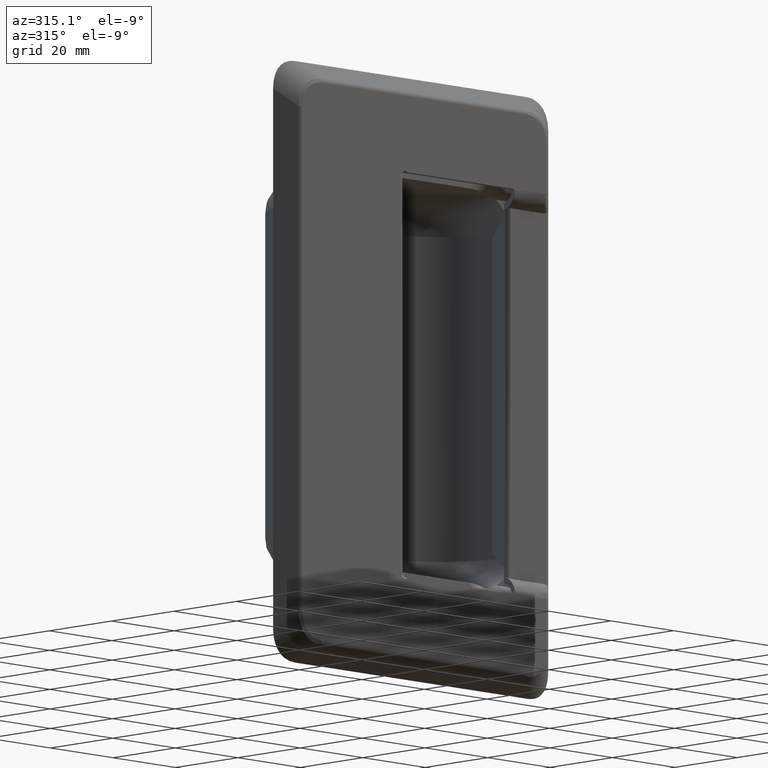
[diagram: clean part render]
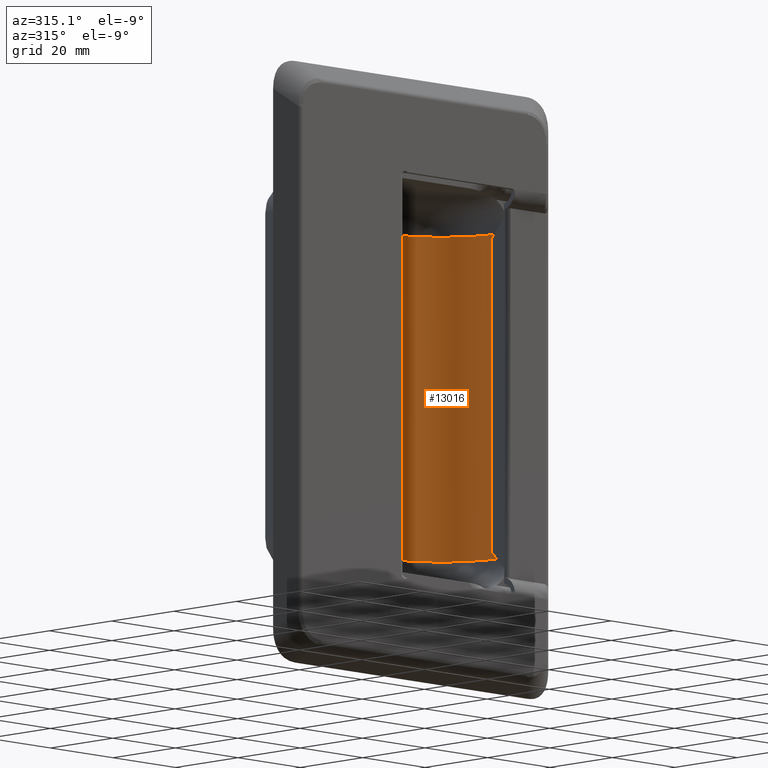
[diagram: same view with one face highlighted and labeled with its STEP entity id]
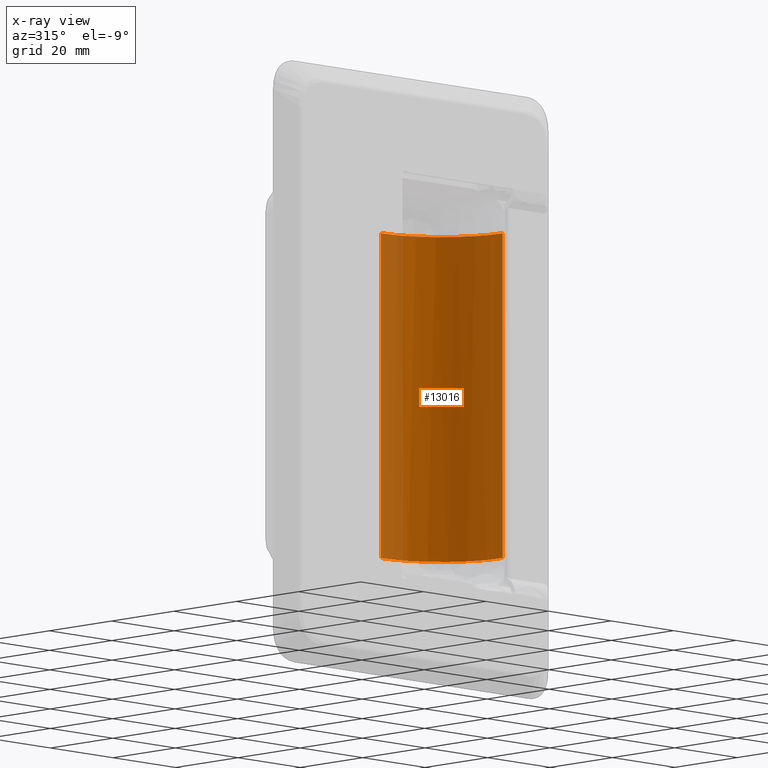
[diagram: x-ray of the same camera — body ghosted, the highlighted face saturated]
A machine part, auxiliary view. The second image highlights one B-rep face of the part: STEP entity #13016.
The next image is the same camera in x-ray: the body ghosted, the highlighted face saturated — about 18% of this face is hidden behind the body in this view.
In plain terms, the highlighted face is a freeform B-spline surface patch.
Its self-contained STEP definition (entity closure, byte-faithful):
#12444=CARTESIAN_POINT('',(30.999999999512951,6.000000000162540,37.249999999966853));
#12445=VERTEX_POINT('',#12444);
#12493=CARTESIAN_POINT('',(11.499999999512960,25.500000000162501,37.249999999956891));
#12494=VERTEX_POINT('',#12493);
#12511=CARTESIAN_POINT('',(11.499999999512960,25.500000000162501,37.249999999956891));
#12512=CARTESIAN_POINT('',(13.215051111177200,25.500532260888910,37.249999999956863));
#12513=CARTESIAN_POINT('',(15.886937039796640,25.145123610949089,37.249999999957232));
#12514=CARTESIAN_POINT('',(19.245414878732671,23.966419696263230,37.249999999957488));
#12515=CARTESIAN_POINT('',(21.587298253000469,22.751375639999690,37.249999999958654));
#12516=CARTESIAN_POINT('',(23.555900358392091,21.382881773687441,37.249999999958511));
#12517=CARTESIAN_POINT('',(25.560853274295429,19.610141710692272,37.249999999960806));
#12518=CARTESIAN_POINT('',(27.216748572274309,17.654376201048152,37.249999999960593));
#12519=CARTESIAN_POINT('',(28.726375527720808,15.254048126577500,37.249999999962093));
#12520=CARTESIAN_POINT('',(29.866744121700059,12.784558390685129,37.249999999963457));
#12521=CARTESIAN_POINT('',(30.772046110546249,9.589440714130939,37.249999999965027));
#12522=CARTESIAN_POINT('',(31.000175508711230,7.276277328261594,37.249999999966157));
#12523=CARTESIAN_POINT('',(30.999999999512951,6.000000000162540,37.249999999966853));
#12524=B_SPLINE_CURVE_WITH_KNOTS('',3,(#12511,#12512,#12513,#12514,#12515,#12516,#12517,#12518,#12519,#12520,#12521,#12522,#12523),.UNSPECIFIED.,.F.,.U.,(4,1,1,1,1,1,1,1,1,1,4),(0.000000094483095,5.144966899626336,8.016596680881811,10.648928653391950,13.041967736172010,15.195695518127931,18.665479991663940,20.699551429892370,23.690841439743888,26.801785137441200,30.630576422912519),.UNSPECIFIED.);
#12525=EDGE_CURVE('',#12494,#12445,#12524,.T.);
#12812=CARTESIAN_POINT('',(11.499999999513200,25.500000000162551,-37.250000000208800));
#12813=VERTEX_POINT('',#12812);
#12907=CARTESIAN_POINT('',(30.999999999513200,6.000000000162540,-37.250000000191648));
#12908=VERTEX_POINT('',#12907);
#12925=CARTESIAN_POINT('',(30.999999999513200,6.000000000162540,-37.250000000191648));
#12926=CARTESIAN_POINT('',(31.000061019447930,7.036969885404043,-37.250000000191633));
#12927=CARTESIAN_POINT('',(30.827842336896001,9.190672010200057,-37.250000000191861));
#12928=CARTESIAN_POINT('',(30.088635912227929,12.141835860209939,-37.250000000192472));
#12929=CARTESIAN_POINT('',(28.970844358318459,14.794099823280440,-37.250000000193488));
#12930=CARTESIAN_POINT('',(27.486054880313620,17.306279979185899,-37.250000000194767));
#12931=CARTESIAN_POINT('',(25.548314747292359,19.652754759047159,-37.250000000196508));
#12932=CARTESIAN_POINT('',(23.282588880261329,21.619183451245160,-37.250000000198440));
#12933=CARTESIAN_POINT('',(20.765077617090238,23.246140343535380,-37.250000000200707));
#12934=CARTESIAN_POINT('',(18.133004793933310,24.422511376908162,-37.250000000203009));
#12935=CARTESIAN_POINT('',(14.929910525863360,25.287765758187799,-37.250000000205723));
#12936=CARTESIAN_POINT('',(12.776274241008171,25.500162465162280,-37.250000000207770));
#12937=CARTESIAN_POINT('',(11.499999999513200,25.500000000162551,-37.250000000208800));
#12938=B_SPLINE_CURVE_WITH_KNOTS('',3,(#12925,#12926,#12927,#12928,#12929,#12930,#12931,#12932,#12933,#12934,#12935,#12936,#12937),.UNSPECIFIED.,.F.,.U.,(4,1,1,1,1,1,1,1,1,1,4),(0.000000094485959,3.110910971584339,6.461134675721851,9.093459613997609,11.725799179651631,15.195695518127170,18.186889637144340,20.699551429891621,24.169444944374241,26.801785137441030,30.630576422912611),.UNSPECIFIED.);
#12939=EDGE_CURVE('',#12908,#12813,#12938,.T.);
#12988=CARTESIAN_POINT('',(10.989549507509670,25.493317837185899,-39.112500000213188));
#12989=CARTESIAN_POINT('',(10.989549507509420,25.493317837185899,39.159062499971299));
#12990=CARTESIAN_POINT('',(32.462203610330228,26.055599073404643,-39.112500000213124));
#12991=CARTESIAN_POINT('',(32.462203610329972,26.055599073404643,39.159062499971370));
#12992=CARTESIAN_POINT('',(30.951727347438986,4.628758525455845,-39.112500000213117));
#12993=CARTESIAN_POINT('',(30.951727347438748,4.628758525455845,39.159062499971370));
#13001=(BOUNDED_SURFACE()B_SPLINE_SURFACE(1,2,((#12988,#12990,#12992),(#12989,#12991,#12993)),.UNSPECIFIED.,.F.,.F.,.U.)B_SPLINE_SURFACE_WITH_KNOTS((2,2),(3,3),(0.0,78.271562500184487),(0.0,34.537275709723097),.UNSPECIFIED.)GEOMETRIC_REPRESENTATION_ITEM()RATIONAL_B_SPLINE_SURFACE(((1.0,0.670944223154768,0.996392648609106),(1.0,0.670944223154768,0.996392648609106)))REPRESENTATION_ITEM('')SURFACE());
#13002=CARTESIAN_POINT('',(11.499999999512960,25.500000000162501,37.249999999956891));
#13003=CARTESIAN_POINT('',(11.499999999513200,25.500000000162551,-37.250000000208800));
#13004=QUASI_UNIFORM_CURVE('',1,(#13002,#13003),.UNSPECIFIED.,.F.,.U.);
#13005=EDGE_CURVE('',#12494,#12813,#13004,.T.);
#13006=ORIENTED_EDGE('',*,*,#13005,.T.);
#13007=ORIENTED_EDGE('',*,*,#12939,.F.);
#13008=CARTESIAN_POINT('',(30.999999999513200,6.000000000162540,-37.250000000191648));
#13009=CARTESIAN_POINT('',(30.999999999512951,6.000000000162540,37.249999999966853));
#13010=QUASI_UNIFORM_CURVE('',1,(#13008,#13009),.UNSPECIFIED.,.F.,.U.);
#13011=EDGE_CURVE('',#12908,#12445,#13010,.T.);
#13012=ORIENTED_EDGE('',*,*,#13011,.T.);
#13013=ORIENTED_EDGE('',*,*,#12525,.F.);
#13014=EDGE_LOOP('',(#13006,#13007,#13012,#13013));
#13015=FACE_OUTER_BOUND('',#13014,.T.);
#13016=ADVANCED_FACE('',(#13015),#13001,.F.);